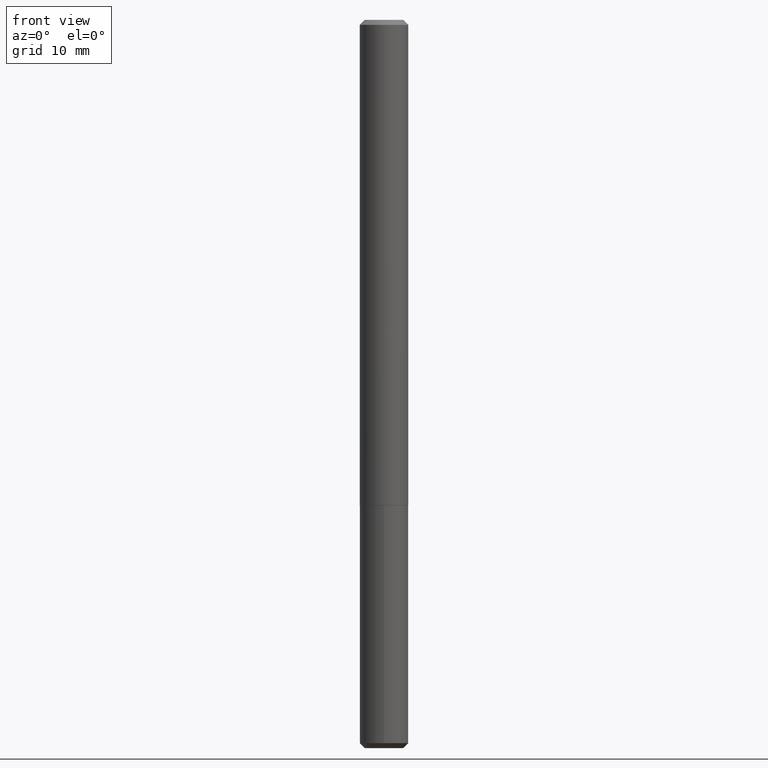
[diagram: clean part render]
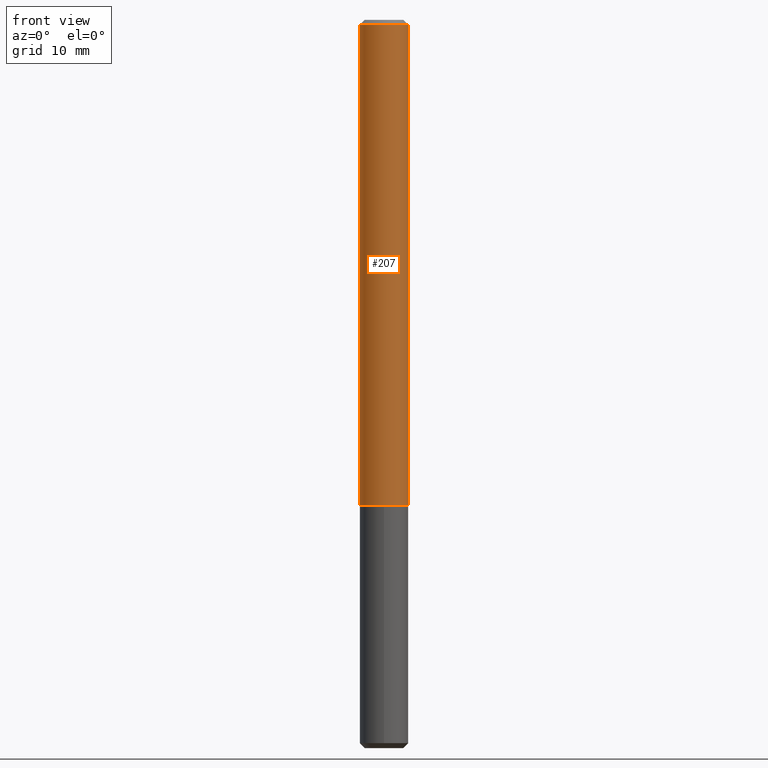
[diagram: same view with one face highlighted and labeled with its STEP entity id]
A machine part, front view. The second image highlights one B-rep face of the part: STEP entity #207.
In plain terms, the highlighted cylindrical surface (edge-blend (fillet) strip) has radius 2.5006 mm, axis along (-0, 0, 1).
Its self-contained STEP definition (entity closure, byte-faithful):
#21 = AXIS2_PLACEMENT_3D ( 'NONE', #336, #179, #147 ) ;
#92 = VERTEX_POINT ( 'NONE', #231 ) ;
#104 = VECTOR ( 'NONE', #271, 39.37007874015748143 ) ;
#111 = CARTESIAN_POINT ( 'NONE',  ( 0.000000000000000000, 0.000000000000000000, 0.000000000000000000 ) ) ;
#115 = EDGE_CURVE ( 'NONE', #322, #216, #268, .T. ) ;
#119 = EDGE_LOOP ( 'NONE', ( #253, #224, #398, #192 ) ) ;
#121 = EDGE_CURVE ( 'NONE', #92, #342, #148, .T. ) ;
#135 = CARTESIAN_POINT ( 'NONE',  ( 0.09844999999999999585, -7.573023023950763513E-16, -0.02000000000000014960 ) ) ;
#147 = DIRECTION ( 'NONE',  ( 1.000000000000000000, -6.982962677686266711E-15, 0.000000000000000000 ) ) ;
#148 = LINE ( 'NONE', #368, #104 ) ;
#150 = CIRCLE ( 'NONE', #21, 0.09844999999999999585 ) ;
#151 = CARTESIAN_POINT ( 'NONE',  ( 4.812682610572349033E-29, -6.871235274843309415E-15, -1.967999999999999972 ) ) ;
#179 = DIRECTION ( 'NONE',  ( -2.445468806185136597E-29, 3.491481338843145583E-15, 1.000000000000000000 ) ) ;
#192 = ORIENTED_EDGE ( 'NONE', *, *, #304, .F. ) ;
#207 = ADVANCED_FACE ( 'NONE', ( #233 ), #229, .T. ) ;
#214 = AXIS2_PLACEMENT_3D ( 'NONE', #111, #262, #403 ) ;
#216 = VERTEX_POINT ( 'NONE', #239 ) ;
#224 = ORIENTED_EDGE ( 'NONE', *, *, #314, .T. ) ;
#229 = CYLINDRICAL_SURFACE ( 'NONE', #214, 0.09845000000000010687 ) ;
#231 = CARTESIAN_POINT ( 'NONE',  ( 0.09845000000000023177, -7.558707950461525130E-15, -1.967999999999999972 ) ) ;
#233 = FACE_OUTER_BOUND ( 'NONE', #119, .T. ) ;
#239 = CARTESIAN_POINT ( 'NONE',  ( -0.09844999999999999585, -2.771003127454265485E-15, -0.02000000000000014960 ) ) ;
#253 = ORIENTED_EDGE ( 'NONE', *, *, #115, .F. ) ;
#262 = DIRECTION ( 'NONE',  ( -2.445468806185136597E-29, 3.491481338843145583E-15, 1.000000000000000000 ) ) ;
#263 = CARTESIAN_POINT ( 'NONE',  ( -0.09845000000000023177, -6.171705951487488938E-15, -1.967999999999999972 ) ) ;
#268 = LINE ( 'NONE', #269, #379 ) ;
#269 = CARTESIAN_POINT ( 'NONE',  ( -0.09845000000000010687, 6.995293233558193923E-16, -4.842691596355960348E-30 ) ) ;
#271 = DIRECTION ( 'NONE',  ( -2.445468806185136877E-29, 3.491481338843145188E-15, 1.000000000000000000 ) ) ;
#276 = DIRECTION ( 'NONE',  ( -2.445468806185136597E-29, 3.491481338843145583E-15, 1.000000000000000000 ) ) ;
#285 = CIRCLE ( 'NONE', #345, 0.09845000000000023177 ) ;
#296 = DIRECTION ( 'NONE',  ( -2.445468806185136877E-29, 3.491481338843145188E-15, 1.000000000000000000 ) ) ;
#304 = EDGE_CURVE ( 'NONE', #216, #342, #150, .T. ) ;
#314 = EDGE_CURVE ( 'NONE', #322, #92, #285, .T. ) ;
#322 = VERTEX_POINT ( 'NONE', #263 ) ;
#330 = DIRECTION ( 'NONE',  ( 1.000000000000000000, -6.982962677686268288E-15, 0.000000000000000000 ) ) ;
#336 = CARTESIAN_POINT ( 'NONE',  ( 4.890937612370309067E-31, -6.982962677686343378E-17, -0.02000000000000014960 ) ) ;
#342 = VERTEX_POINT ( 'NONE', #135 ) ;
#345 = AXIS2_PLACEMENT_3D ( 'NONE', #151, #276, #330 ) ;
#368 = CARTESIAN_POINT ( 'NONE',  ( 0.09845000000000010687, -6.874726756182137434E-16, 4.800596035771104119E-30 ) ) ;
#379 = VECTOR ( 'NONE', #296, 39.37007874015748143 ) ;
#398 = ORIENTED_EDGE ( 'NONE', *, *, #121, .T. ) ;
#403 = DIRECTION ( 'NONE',  ( 1.000000000000000000, -6.982962677686267499E-15, 4.876176775795935793E-29 ) ) ;